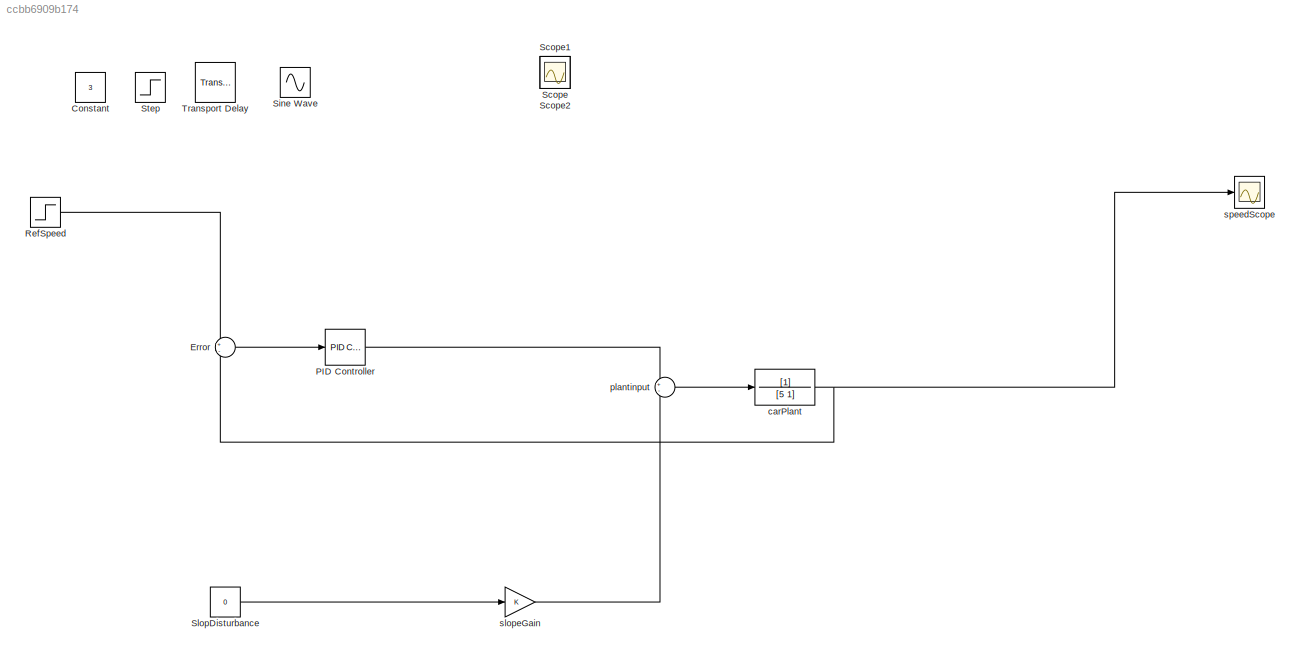
MODEL slx_ccbb6909b174
KIND model
CONFIG AbsTol = auto
CONFIG EnableMultiTasking = off
CONFIG FixedStep = auto
CONFIG MaxStep = auto
CONFIG MinStep = auto
CONFIG RelTol = 1e-3
CONFIG SampleTimeConstraint = Unconstrained
CONFIG SolverName = VariableStepAuto
CONFIG StartTime = 0.0
CONFIG StopTime = 20
BLOCK [Constant] Constant
  Value = 3
BLOCK [Sum] Error
  Inputs = +-
BLOCK [Reference] PID Controller  REF=slpidlib/PID Controller
  LibrarySourceBlock = simulink/Continuous/PID Controller
  SourceBlock = slpidlib/PID Controller
  SourceType = PID 1dof
BLOCK [Step] RefSpeed
  After = 20
  SampleTime = 0
  Time = 0
BLOCK [Scope] Scope
  ActiveDisplayYMaximum = 22.504683168584815
  ActiveDisplayYMinimum = -2.5421485172633425
  ContainerLayout = {"WindowBounds":[480,1363,888,765]}
  DataLoggingVariableName = ScopeData1
  Floating = off
  GraphicalSettings = {"Style":{"BackgroundColor":[0.12941176470588237,0.12941176470588237,0.12941176470588237],"AxesColor":[0.07058823529411765,0.07058823529411765,0.07058823529411765],"LabelsColor":[0.8509803921568627,0.8509803921568627,0.8509803921568627],"PreserveColors":false,"Visible":[true],"LineStyle":["-"],"LineWidth":[1.5],"BarWidth":[0.9],"LineColor":["auto"],"LineFaceAlpha":[1],"LineEdgeAlpha":[1],"Marker":...<+1994ch>
  IOType = viewer
  MultipleDisplayCache = [{"MaxYLimMag":22.504683168584815,"MaxYLimReal":22.504683168584815,"MinYLimMag":0,"MinYLimReal":-2.5421485172633425,"PlotAsMagnitudePhase":false,"ShowGrid":true,"ShowLegend":false,"Title":"%<SignalLabel>","YLabel":""}]
  NumInputPorts = 1
  Visible = on
  WasSavedAsWebScope = on
BLOCK [Scope] Scope1
  ActiveDisplayYMaximum = 27.468361704567869
  ActiveDisplayYMinimum = -3.6942462344603122
  ContainerLayout = {"WindowBounds":[480,1363,888,765]}
  DataLoggingVariableName = ScopeData2
  Floating = off
  GraphicalSettings = {"Style":{"BackgroundColor":[0.12941176470588237,0.12941176470588237,0.12941176470588237],"AxesColor":[0.07058823529411765,0.07058823529411765,0.07058823529411765],"LabelsColor":[0.8509803921568627,0.8509803921568627,0.8509803921568627],"PreserveColors":false,"Visible":[true],"LineStyle":["-"],"LineWidth":[1.5],"BarWidth":[0.9],"LineColor":["auto"],"LineFaceAlpha":[1],"LineEdgeAlpha":[1],"Marker":...<+1997ch>
  IOType = viewer
  MultipleDisplayCache = [{"MaxYLimMag":22.837371835672553,"MaxYLimReal":27.468361704567869,"MinYLimMag":0,"MinYLimReal":-3.6942462344603122,"PlotAsMagnitudePhase":false,"ShowGrid":true,"ShowLegend":false,"Title":"%<SignalLabel>","YLabel":""}]
  NumInputPorts = 1
  Visible = on
  WasSavedAsWebScope = on
BLOCK [Scope] Scope2
  ActiveDisplayYMaximum = 27.354567444635784
  ActiveDisplayYMinimum = -10.42118830015192
  ContainerLayout = {"WindowBounds":[480,1363,888,765]}
  DataLoggingVariableName = ScopeData3
  Floating = off
  GraphicalSettings = {"Style":{"BackgroundColor":[0.12941176470588237,0.12941176470588237,0.12941176470588237],"AxesColor":[0.07058823529411765,0.07058823529411765,0.07058823529411765],"LabelsColor":[0.8509803921568627,0.8509803921568627,0.8509803921568627],"PreserveColors":false,"Visible":[true],"LineStyle":["-"],"LineWidth":[1.5],"BarWidth":[0.9],"LineColor":["auto"],"LineFaceAlpha":[1],"LineEdgeAlpha":[1],"Marker":...<+1999ch>
  IOType = viewer
  MultipleDisplayCache = [{"MaxYLimMag":22.542148517263342,"MaxYLimReal":27.354567444635784,"MinYLimMag":0,"MinYLimReal":-10.42118830015192,"PlotAsMagnitudePhase":false,"ShowGrid":true,"ShowLegend":false,"Title":"%<SignalLabel>","YLabel":""}]
  NumInputPorts = 1
  Visible = on
  WasSavedAsWebScope = on
BLOCK [Sin] Sine Wave
  Amplitude = 0.3
  Frequency = 0.2
  SampleTime = 0
BLOCK [Constant] SlopDisturbance
  Value = 0
BLOCK [Step] Step
  After = 5
  SampleTime = 0
  Time = 8
BLOCK [TransportDelay] Transport Delay
  DelayTime = 1.5
BLOCK [TransferFcn] carPlant
  Denominator = [5 1]
BLOCK [Sum] plantinput
  Inputs = +-
BLOCK [Gain] slopeGain
BLOCK [Scope] speedScope
  ActiveDisplayYMaximum = 44.233101667075033
  ActiveDisplayYMinimum = 9.8067659043586559
  ContainerLayout = {"WindowBounds":[58,1363,954,765]}
  Floating = off
  GraphicalSettings = {"Style":{"BackgroundColor":[0.12941176470588237,0.12941176470588237,0.12941176470588237],"AxesColor":[0.07058823529411765,0.07058823529411765,0.07058823529411765],"LabelsColor":[0.8509803921568627,0.8509803921568627,0.8509803921568627],"PreserveColors":false,"Visible":[true],"LineStyle":["-"],"LineWidth":[1.5],"BarWidth":[0.9],"LineColor":["auto"],"LineFaceAlpha":[1],"LineEdgeAlpha":[1],"Marker":...<+2025ch>
  MultipleDisplayCache = [{"MaxYLimMag":21.760490723664955,"MaxYLimReal":44.233101667075033,"MinYLimMag":7.38368096330274,"MinYLimReal":9.8067659043586559,"PlotAsMagnitudePhase":false,"ShowGrid":true,"ShowLegend":false,"Title":"%<SignalLabel>","YLabel":""}]
  NumInputPorts = 1
  Visible = on
  WasSavedAsWebScope = on
  WindowPosition = [146.000000,15.000000,941.000000,768.000000,]
LINE Error:1 -> PID Controller:1
LINE PID Controller:1 -> plantinput:1
LINE RefSpeed:1 -> Error:1
LINE SlopDisturbance:1 -> slopeGain:1
NET carPlant:1 -> Error:2, speedScope:1
LINE plantinput:1 -> carPlant:1
LINE slopeGain:1 -> plantinput:2
note: NET lines group one-source signal fan-out (src -> all destinations, sorted); 1:1 wires keep LINE
